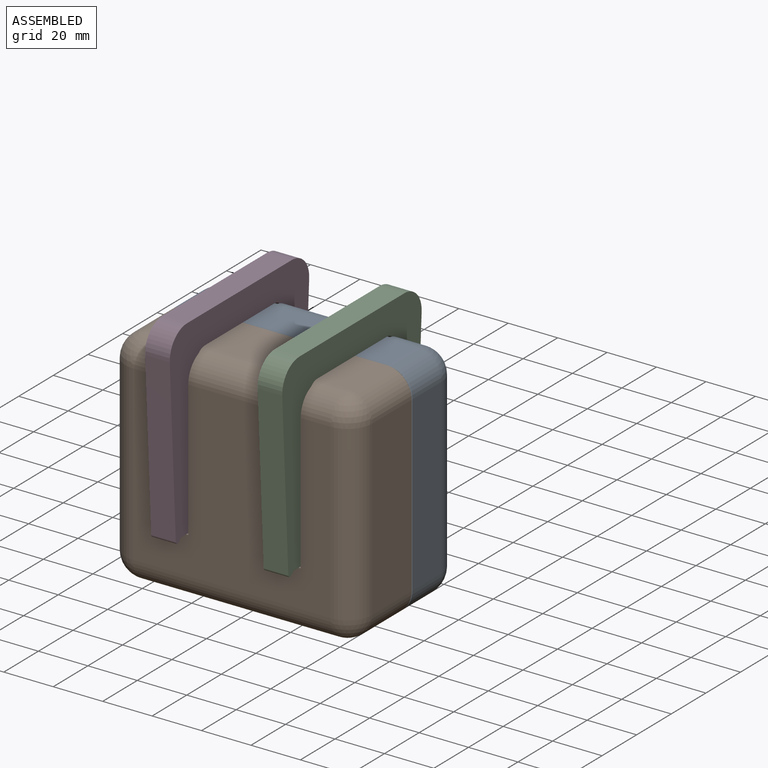
[diagram: assembled view]
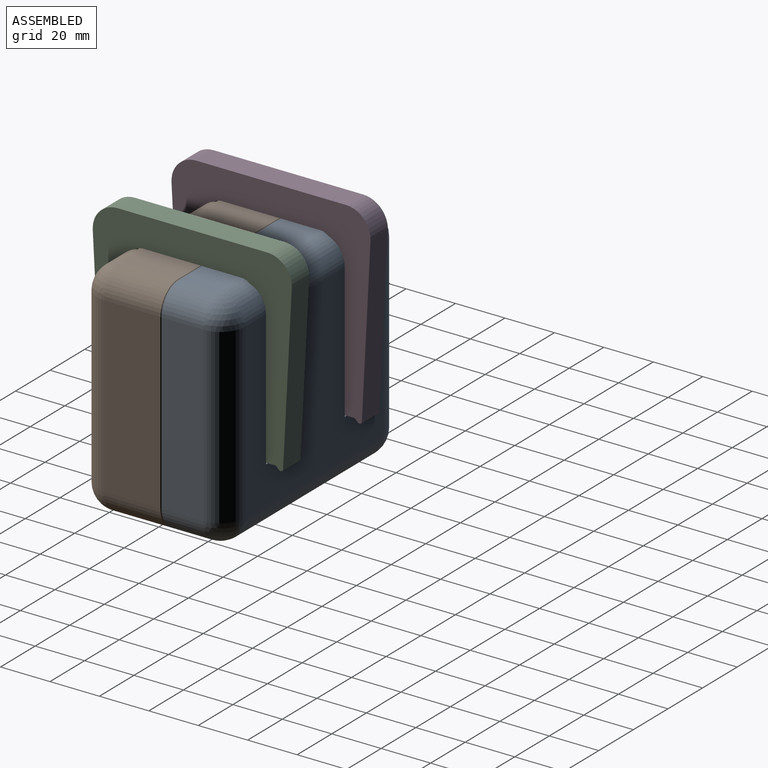
[diagram: assembled view, second angle]
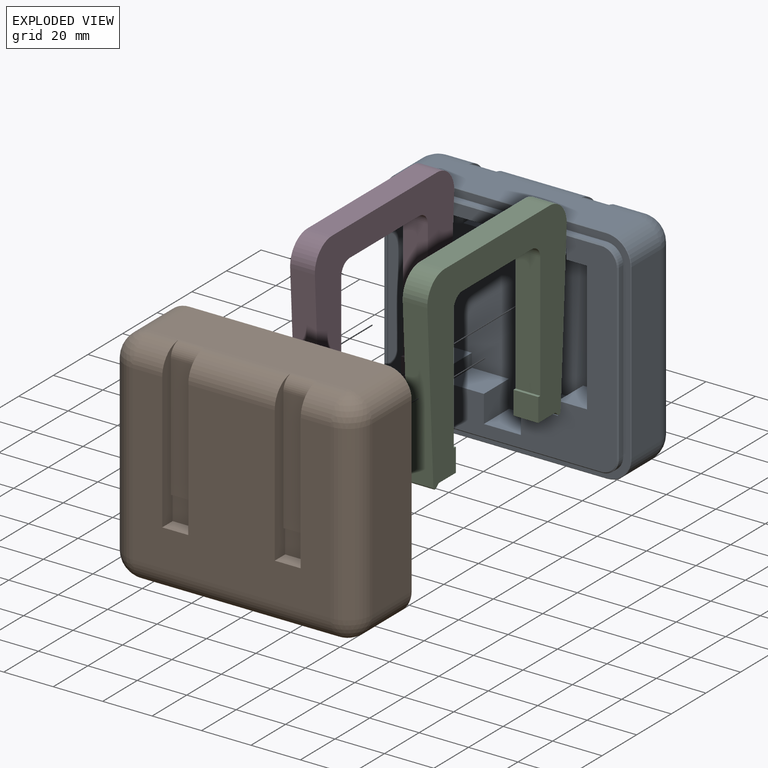
[diagram: exploded view]
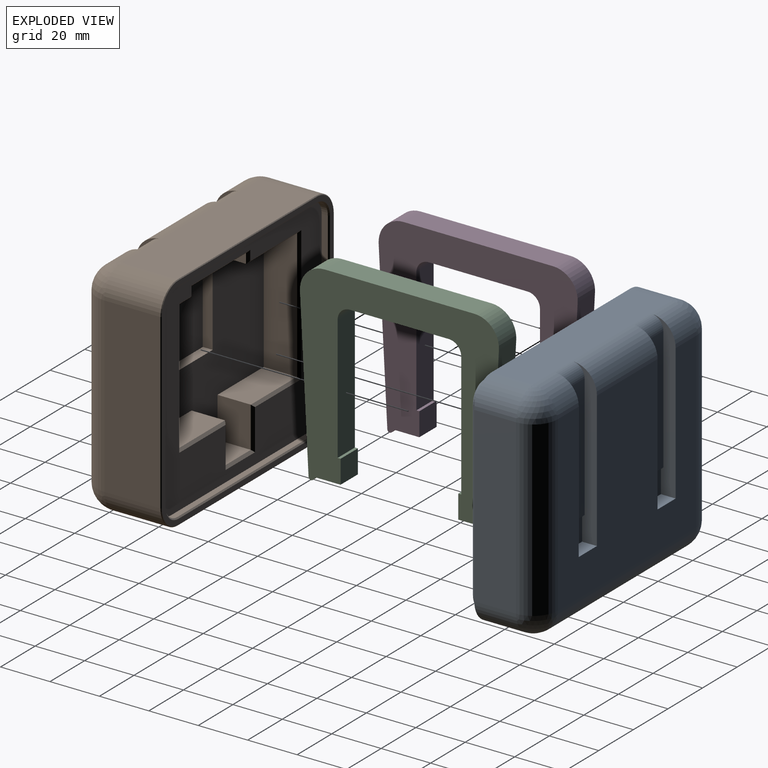
[diagram: exploded view, second angle]
ASSEMBLY  parts=4 mates=4
PART A: 78 faces, bbox 100x30x90 mm
  f0: plane 69x68.5mm, normal (0,-1,0), area 3696.8mm2, adj f37,f38,f39,f40,f41,f42,f43,f44
  f1: cylinder r=10mm len=12mm, axis (-1,0,0), area 188.5mm2, adj f6,f7,f9,f26
  f2: cylinder r=10mm len=35mm, axis (-1,0,0), area 549.8mm2, adj f6,f7,f22,f24
  f3: plane 70x16.8mm, normal (-1,0,0), area 1176mm2, adj f13,f17,f19,f73
  f4: plane 80x16.8mm, normal (0,0,-1), area 1344mm2, adj f10,f16,f19,f77
  f5: plane 70x16.8mm, normal (1,0,0), area 1176mm2, adj f8,f10,f11,f74
  f6: plane 80x16.8mm, normal (0,0,1), area 1344mm2, adj f1,f2,f8,f12,f13,f66,f67,f70
  f7: plane 80x70mm, normal (0,1,0), area 4445mm2, adj f1,f2,f11,f12,f16,f17,f20,f22
  f8: cylinder r=10mm len=16.8mm, axis (0,-1,0), area 263.9mm2, adj f5,f6,f9,f72
  f9: sphere r=10mm, area 157.1mm2, adj f1,f8,f11
  f10: cylinder r=10mm len=16.8mm, axis (0,1,0), area 263.9mm2, adj f4,f5,f14,f76
  f11: cylinder r=10mm len=70mm, axis (0,0,1), area 1099.6mm2, adj f5,f7,f9,f14
  f12: cylinder r=10mm len=12mm, axis (-1,0,0), area 188.5mm2, adj f6,f7,f15,f20
  f13: cylinder r=10mm len=16.8mm, axis (0,1,0), area 263.9mm2, adj f3,f6,f15,f71
  f14: sphere r=10mm, area 157.1mm2, adj f10,f11,f16
  f15: sphere r=10mm, area 157.1mm2, adj f12,f13,f17
  f16: cylinder r=10mm len=80mm, axis (1,0,0), area 1256.6mm2, adj f4,f7,f14,f18
  f17: cylinder r=10mm len=70mm, axis (0,0,-1), area 1099.6mm2, adj f3,f7,f15,f18
  f18: sphere r=10mm, area 157.1mm2, adj f16,f17,f19
  f19: cylinder r=10mm len=16.8mm, axis (0,-1,0), area 263.9mm2, adj f3,f4,f18,f75
  f20: plane 65x10mm, normal (1,0,0), area 318.9mm2, adj f7,f12,f21,f23,f56,f57,f67
  f21: plane 50x10.5mm, normal (0,1,0), area 525mm2, adj f20,f22,f56,f67
  f22: plane 65x10mm, normal (-1,0,0), area 318.9mm2, adj f2,f7,f21,f23,f56,f57,f67
  f23: plane 10.5x6mm, normal (0,0,1), area 63mm2, adj f7,f20,f22,f57
  f24: plane 65x10mm, normal (1,0,0), area 318.9mm2, adj f2,f7,f25,f27,f54,f55,f66
  f25: plane 50x10.5mm, normal (0,1,0), area 525mm2, adj f24,f26,f54,f66
  f26: plane 65x10mm, normal (-1,0,0), area 318.9mm2, adj f1,f7,f25,f27,f54,f55,f66
  f27: plane 10.5x6mm, normal (0,0,1), area 63mm2, adj f7,f24,f26,f55
  f28: cylinder r=6.8mm len=6.8mm, axis (0,-1,0), area 26.7mm2, adj f29,f35,f36,f64
  f29: plane 70x2.5mm, normal (1,0,0), area 175mm2, adj f28,f30,f36,f65
  f30: cylinder r=6.8mm len=6.8mm, axis (0,-1,0), area 26.7mm2, adj f29,f31,f36,f63
  f31: plane 80x2.5mm, normal (0,0,-1), area 200mm2, adj f30,f32,f36,f61
  f32: cylinder r=6.8mm len=6.8mm, axis (0,-1,0), area 26.7mm2, adj f31,f33,f36,f59
  f33: plane 70x2.5mm, normal (-1,0,0), area 175mm2, adj f32,f34,f36,f58
  f34: cylinder r=6.8mm len=6.8mm, axis (0,-1,0), area 26.7mm2, adj f33,f35,f36,f60
  f35: plane 80x2.5mm, normal (0,0,1), area 200mm2, adj f28,f34,f36,f62
  f36: plane 99.6x89.6mm, normal (0,-1,0), area 1056.5mm2, adj f28,f29,f30,f31,f32,f33,f34,f35
  f37: plane 19.5x10mm, normal (1,0,0), area 108mm2, adj f0,f38,f52,f53,f68,f69
  f38: plane 14.5x8.25mm, normal (0,0,-1), area 119.6mm2, adj f0,f37,f39,f53
  f39: plane 52.5x14.5mm, normal (1,0,0), area 761.2mm2, adj f0,f38,f40,f53
  f40: plane 14.5x11.75mm, normal (0,0,1), area 170.4mm2, adj f0,f39,f41,f53
  f41: plane 14.5x5.5mm, normal (1,0,0), area 79.7mm2, adj f0,f40,f42,f53
  f42: plane 15x14.5mm, normal (0,0,1), area 217.5mm2, adj f0,f41,f43,f53
  f43: plane 14.5x11mm, normal (1,0,0), area 159.5mm2, adj f0,f42,f44,f53
  f44: plane 15x14.5mm, normal (0,0,1), area 217.5mm2, adj f0,f43,f45,f53
  f45: plane 14.5x11mm, normal (-1,0,0), area 159.5mm2, adj f0,f44,f46,f53
  f46: plane 15x14.5mm, normal (0,0,1), area 217.5mm2, adj f0,f45,f47,f53
  f47: plane 14.5x5.5mm, normal (-1,0,0), area 79.7mm2, adj f0,f46,f48,f53
  f48: plane 14.5x11.75mm, normal (0,0,1), area 170.4mm2, adj f0,f47,f49,f53
  f49: plane 52.5x14.5mm, normal (-1,0,0), area 761.2mm2, adj f0,f48,f50,f53
  f50: plane 14.5x8.25mm, normal (0,0,-1), area 119.6mm2, adj f0,f49,f51,f53
  f51: plane 19.5x10mm, normal (-1,0,0), area 108mm2, adj f0,f50,f52,f53,f68,f69
  f52: plane 52x19.5mm, normal (0,0,-1), area 1014mm2, adj f37,f51,f53,f69
  f53: plane 92.6x82.6mm, normal (0,-1,0), area 3397.9mm2, adj f37,f38,f39,f40,f41,f42,f43,f44
  f54: plane 10.5x1mm, normal (0,0,-1), area 10.5mm2, adj f24,f25,f26,f55
  f55: plane 10.5x10mm, normal (0,1,0), area 105mm2, adj f24,f26,f27,f54
  f56: plane 10.5x1mm, normal (0,0,-1), area 10.5mm2, adj f20,f21,f22,f57
  f57: plane 10.5x10mm, normal (0,1,0), area 105mm2, adj f20,f22,f23,f56
  f58: plane 70x0.5mm, normal (-0.71,-0.71,0), area 49.5mm2, adj f33,f53,f59,f60
  f59: cone r=6.3mm half-angle=45deg, axis (0,1,0), area 7.3mm2, adj f32,f53,f58,f61
  f60: cone r=6.3mm half-angle=45deg, axis (0,1,0), area 7.3mm2, adj f34,f53,f58,f62
  f61: plane 80x0.5mm, normal (0,-0.71,-0.71), area 56.6mm2, adj f31,f53,f59,f63
  f62: plane 80x0.5mm, normal (0,-0.71,0.71), area 56.6mm2, adj f35,f53,f60,f64
  f63: cone r=6.3mm half-angle=45deg, axis (0,1,0), area 7.3mm2, adj f30,f53,f61,f65
  f64: cone r=6.3mm half-angle=45deg, axis (0,1,0), area 7.3mm2, adj f28,f53,f62,f65
  f65: plane 70x0.5mm, normal (0.71,-0.71,0), area 49.5mm2, adj f29,f53,f63,f64
  f66: cylinder r=5mm len=10.5mm, axis (-1,0,0), area 82.5mm2, adj f6,f24,f25,f26
  f67: cylinder r=5mm len=10.5mm, axis (-1,0,0), area 82.5mm2, adj f6,f20,f21,f22
  f68: plane 52x5mm, normal (0,0,1), area 260mm2, adj f0,f37,f51,f69
  f69: plane 52x10mm, normal (0,-1,0), area 520mm2, adj f37,f51,f52,f68
  f70: plane 80x0.2mm, normal (0,-0.71,0.71), area 22.6mm2, adj f6,f36,f71,f72
  f71: cone r=9.8mm half-angle=45deg, axis (0,1,0), area 4.4mm2, adj f13,f36,f70,f73
  f72: cone r=9.8mm half-angle=45deg, axis (0,1,0), area 4.4mm2, adj f8,f36,f70,f74
  f73: plane 70x0.2mm, normal (-0.71,-0.71,0), area 19.8mm2, adj f3,f36,f71,f75
  f74: plane 70x0.2mm, normal (0.71,-0.71,0), area 19.8mm2, adj f5,f36,f72,f76
  f75: cone r=9.8mm half-angle=45deg, axis (0,1,0), area 4.4mm2, adj f19,f36,f73,f77
  f76: cone r=9.8mm half-angle=45deg, axis (0,1,0), area 4.4mm2, adj f10,f36,f74,f77
  f77: plane 80x0.2mm, normal (0,-0.71,-0.71), area 22.6mm2, adj f4,f36,f75,f76
PART B: 88 faces, bbox 100x33x90 mm
  f0: plane 32x4mm, normal (0,-1,0), area 128mm2, adj f38,f39,f40,f49
  f1: cylinder r=10mm len=12mm, axis (-1,0,0), area 188.5mm2, adj f6,f7,f9,f26
  f2: cylinder r=10mm len=35mm, axis (-1,0,0), area 549.8mm2, adj f6,f7,f22,f24
  f3: plane 70x22.7mm, normal (-1,0,0), area 1589mm2, adj f13,f17,f19,f71
  f4: plane 80x22.7mm, normal (0,0,-1), area 1816mm2, adj f10,f16,f19,f75
  f5: plane 70x22.7mm, normal (1,0,0), area 1589mm2, adj f8,f10,f11,f72
  f6: plane 80x22.7mm, normal (0,0,1), area 1816mm2, adj f1,f2,f8,f12,f13,f63,f64,f68
  f7: plane 80x70mm, normal (0,1,0), area 4445mm2, adj f1,f2,f11,f12,f16,f17,f20,f22
  f8: cylinder r=10mm len=22.7mm, axis (0,-1,0), area 356.6mm2, adj f5,f6,f9,f70
  f9: sphere r=10mm, area 157.1mm2, adj f1,f8,f11
  f10: cylinder r=10mm len=22.7mm, axis (0,1,0), area 356.6mm2, adj f4,f5,f14,f74
  f11: cylinder r=10mm len=70mm, axis (0,0,1), area 1099.6mm2, adj f5,f7,f9,f14
  f12: cylinder r=10mm len=12mm, axis (-1,0,0), area 188.5mm2, adj f6,f7,f15,f20
  f13: cylinder r=10mm len=22.7mm, axis (0,1,0), area 356.6mm2, adj f3,f6,f15,f69
  f14: sphere r=10mm, area 157.1mm2, adj f10,f11,f16
  f15: sphere r=10mm, area 157.1mm2, adj f12,f13,f17
  f16: cylinder r=10mm len=80mm, axis (1,0,0), area 1256.6mm2, adj f4,f7,f14,f18
  f17: cylinder r=10mm len=70mm, axis (0,0,-1), area 1099.6mm2, adj f3,f7,f15,f18
  f18: sphere r=10mm, area 157.1mm2, adj f16,f17,f19
  f19: cylinder r=10mm len=22.7mm, axis (0,-1,0), area 356.6mm2, adj f3,f4,f18,f73
  f20: plane 65x10mm, normal (1,0,0), area 318.9mm2, adj f7,f12,f21,f23,f53,f54,f64
  f21: plane 50x10.5mm, normal (0,1,0), area 525mm2, adj f20,f22,f53,f64
  f22: plane 65x10mm, normal (-1,0,0), area 318.9mm2, adj f2,f7,f21,f23,f53,f54,f64
  f23: plane 10.5x6mm, normal (0,0,1), area 63mm2, adj f7,f20,f22,f54
  f24: plane 65x10mm, normal (1,0,0), area 318.9mm2, adj f2,f7,f25,f27,f51,f52,f63
  f25: plane 50x10.5mm, normal (0,1,0), area 525mm2, adj f24,f26,f51,f63
  f26: plane 65x10mm, normal (-1,0,0), area 318.9mm2, adj f1,f7,f25,f27,f51,f52,f63
  f27: plane 10.5x6mm, normal (0,0,1), area 63mm2, adj f7,f24,f26,f52
  f28: cylinder r=7mm len=7mm, axis (0,1,0), area 27.5mm2, adj f29,f35,f50,f58
  f29: plane 70x2.5mm, normal (-1,0,0), area 175mm2, adj f28,f30,f50,f56
  f30: cylinder r=7mm len=7mm, axis (0,1,0), area 27.5mm2, adj f29,f31,f50,f55
  f31: plane 80x2.5mm, normal (0,0,1), area 200mm2, adj f30,f32,f50,f57
  f32: cylinder r=7mm len=7mm, axis (0,1,0), area 27.5mm2, adj f31,f33,f50,f59
  f33: plane 70x2.5mm, normal (1,0,0), area 175mm2, adj f32,f34,f50,f61
  f34: cylinder r=7mm len=7mm, axis (0,1,0), area 27.5mm2, adj f33,f35,f50,f62
  f35: plane 80x2.5mm, normal (0,0,-1), area 200mm2, adj f28,f34,f50,f60
  f36: plane 99.4x89.4mm, normal (0,-1,0), area 778.9mm2, adj f55,f56,f57,f58,f59,f60,f61,f62
  f37: plane 69x68.5mm, normal (0,-1,0), area 2478.7mm2, adj f41,f42,f43,f44,f45,f46,f47,f48
  f38: plane 32x13.5mm, normal (0,0,-1), area 432mm2, adj f0,f39,f49,f86
  f39: plane 13.5x4mm, normal (1,0,0), area 54mm2, adj f0,f38,f40,f84
  f40: plane 39x17.5mm, normal (0,0,-1), area 250.5mm2, adj f0,f39,f41,f66,f67,f82
  f41: plane 52.5x17.5mm, normal (1,0,0), area 848.8mm2, adj f37,f40,f42,f65,f67,f80
  f42: plane 26.75x13.5mm, normal (0,0,1), area 361.1mm2, adj f37,f41,f43,f78
  f43: plane 16.5x13.5mm, normal (1,0,0), area 222.7mm2, adj f37,f42,f44,f76
  f44: plane 15x13.5mm, normal (0,0,1), area 202.5mm2, adj f37,f43,f45,f77
  f45: plane 16.5x13.5mm, normal (-1,0,0), area 222.7mm2, adj f37,f44,f46,f79
  f46: plane 26.75x13.5mm, normal (0,0,1), area 361.1mm2, adj f37,f45,f47,f81
  f47: plane 52.5x13.5mm, normal (-1,0,0), area 708.8mm2, adj f37,f46,f48,f83
  f48: plane 29.5x13.5mm, normal (0,0,-1), area 398.2mm2, adj f37,f47,f49,f85
  f49: plane 13.5x4mm, normal (-1,0,0), area 54mm2, adj f0,f38,f48,f87
  f50: plane 94x84mm, normal (0,-1,0), area 3595.2mm2, adj f28,f29,f30,f31,f32,f33,f34,f35
  f51: plane 10.5x1mm, normal (0,0,-1), area 10.5mm2, adj f24,f25,f26,f52
  f52: plane 10.5x10mm, normal (0,1,0), area 105mm2, adj f24,f26,f27,f51
  f53: plane 10.5x1mm, normal (0,0,-1), area 10.5mm2, adj f20,f21,f22,f54
  f54: plane 10.5x10mm, normal (0,1,0), area 105mm2, adj f20,f22,f23,f53
  f55: cone r=7mm half-angle=45deg, axis (0,-1,0), area 8.1mm2, adj f30,f36,f56,f57
  f56: plane 70x0.5mm, normal (-0.71,-0.71,0), area 49.5mm2, adj f29,f36,f55,f58
  f57: plane 80x0.5mm, normal (0,-0.71,0.71), area 56.6mm2, adj f31,f36,f55,f59
  f58: cone r=7mm half-angle=45deg, axis (0,-1,0), area 8.1mm2, adj f28,f36,f56,f60
  f59: cone r=7mm half-angle=45deg, axis (0,-1,0), area 8.1mm2, adj f32,f36,f57,f61
  f60: plane 80x0.5mm, normal (0,-0.71,-0.71), area 56.6mm2, adj f35,f36,f58,f62
  f61: plane 70x0.5mm, normal (0.71,-0.71,0), area 49.5mm2, adj f33,f36,f59,f62
  f62: cone r=7mm half-angle=45deg, axis (0,-1,0), area 8.1mm2, adj f34,f36,f60,f61
  f63: cylinder r=5mm len=10.5mm, axis (-1,0,0), area 82.5mm2, adj f6,f24,f25,f26
  f64: cylinder r=5mm len=10.5mm, axis (-1,0,0), area 82.5mm2, adj f6,f20,f21,f22
  f65: plane 39x4mm, normal (0,0,1), area 156mm2, adj f37,f41,f66,f67
  f66: plane 35x4mm, normal (-1,0,0), area 140mm2, adj f37,f40,f65,f67
  f67: plane 39x35mm, normal (0,-1,0), area 1365mm2, adj f40,f41,f65,f66
  f68: plane 80x0.3mm, normal (0,-0.71,0.71), area 33.9mm2, adj f6,f36,f69,f70
  f69: cone r=9.7mm half-angle=45deg, axis (0,1,0), area 6.6mm2, adj f13,f36,f68,f71
  f70: cone r=9.7mm half-angle=45deg, axis (0,1,0), area 6.6mm2, adj f8,f36,f68,f72
  f71: plane 70x0.3mm, normal (-0.71,-0.71,0), area 29.7mm2, adj f3,f36,f69,f73
  f72: plane 70x0.3mm, normal (0.71,-0.71,0), area 29.7mm2, adj f5,f36,f70,f74
  f73: cone r=9.7mm half-angle=45deg, axis (0,1,0), area 6.6mm2, adj f19,f36,f71,f75
  f74: cone r=9.7mm half-angle=45deg, axis (0,1,0), area 6.6mm2, adj f10,f36,f72,f75
  f75: plane 80x0.3mm, normal (0,-0.71,-0.71), area 33.9mm2, adj f4,f36,f73,f74
  f76: plane 17.5x1mm, normal (0.71,-0.71,0), area 23.3mm2, adj f43,f50,f77,f78
  f77: plane 17x1mm, normal (0,-0.71,0.71), area 22.6mm2, adj f44,f50,f76,f79
  f78: plane 27.75x1mm, normal (0,-0.71,0.71), area 37.8mm2, adj f42,f50,f76,f80
  f79: plane 17.5x1mm, normal (-0.71,-0.71,0), area 23.3mm2, adj f45,f50,f77,f81
  f80: plane 54.5x1mm, normal (0.71,-0.71,0), area 75.7mm2, adj f41,f50,f78,f82
  f81: plane 27.75x1mm, normal (0,-0.71,0.71), area 37.8mm2, adj f46,f50,f79,f83
  f82: plane 8x1mm, normal (0,-0.71,-0.71), area 9.9mm2, adj f40,f50,f80,f84
  f83: plane 54.5x1mm, normal (-0.71,-0.71,0), area 75.7mm2, adj f47,f50,f81,f85
  f84: plane 5x1mm, normal (0.71,-0.71,0), area 5.7mm2, adj f39,f50,f82,f86
  f85: plane 30.5x1mm, normal (0,-0.71,-0.71), area 41.7mm2, adj f48,f50,f83,f87
  f86: plane 34x1mm, normal (0,-0.71,-0.71), area 46.7mm2, adj f38,f50,f84,f87
  f87: plane 5x1mm, normal (-0.71,-0.71,0), area 5.7mm2, adj f49,f50,f85,f86
PART C: 24 faces, bbox 78.5x10x80.5 mm
  f0: plane 50.5x10mm, normal (0,0,-1), area 505mm2, adj f13,f14,f15,f16
  f1: plane 40x10mm, normal (-1,0,0), area 400mm2, adj f14,f15,f16,f17
  f2: plane 50.5x10mm, normal (0,0,1), area 505mm2, adj f3,f14,f15,f17
  f3: plane 10x1.2mm, normal (1,0,0), area 12mm2, adj f2,f4,f14,f15
  f4: plane 10x9.5mm, normal (0,0,1), area 95mm2, adj f3,f5,f14,f15
  f5: plane 10x9.59mm, normal (-1,0,0), area 95.9mm2, adj f4,f14,f15,f20
  f6: plane 10x0.95mm, normal (-0.71,0,0.71), area 13.4mm2, adj f14,f15,f20,f21
  f7: plane 67.06x10mm, normal (-0.05,0,-1), area 671.5mm2, adj f14,f15,f18,f21
  f8: plane 60.55x10mm, normal (1,0,0), area 605.5mm2, adj f14,f15,f18,f19
  f9: plane 67.06x10mm, normal (-0.05,0,1), area 671.5mm2, adj f14,f15,f19,f22
  f10: plane 10x0.95mm, normal (-0.71,0,-0.71), area 13.4mm2, adj f14,f15,f22,f23
  f11: plane 10x9.59mm, normal (-1,0,0), area 95.9mm2, adj f12,f14,f15,f23
  f12: plane 10x9.5mm, normal (0,0,-1), area 95mm2, adj f11,f13,f14,f15
  f13: plane 10x1.2mm, normal (1,0,0), area 12mm2, adj f0,f12,f14,f15
  f14: plane 80.55x78.53mm, normal (0,-1,0), area 2715.7mm2, adj f0,f1,f2,f3,f4,f5,f6,f7
  f15: plane 80.55x78.53mm, normal (0,1,0), area 2715.7mm2, adj f0,f1,f2,f3,f4,f5,f6,f7
  f16: cylinder r=5mm len=10mm, axis (0,-1,0), area 78.5mm2, adj f0,f1,f14,f15
  f17: cylinder r=5mm len=10mm, axis (0,-1,0), area 78.5mm2, adj f1,f2,f14,f15
  f18: cylinder r=10mm len=10.52mm, axis (0,1,0), area 162.3mm2, adj f7,f8,f14,f15
  f19: cylinder r=10mm len=10.52mm, axis (0,1,0), area 162.3mm2, adj f8,f9,f14,f15
  f20: cylinder r=1mm len=10mm, axis (0,-1,0), area 7.9mm2, adj f5,f6,f14,f15
  f21: cylinder r=1mm len=10mm, axis (0,1,0), area 23mm2, adj f6,f7,f14,f15
  f22: cylinder r=1mm len=10mm, axis (0,1,0), area 23mm2, adj f9,f10,f14,f15
  f23: cylinder r=1mm len=10mm, axis (0,-1,0), area 7.9mm2, adj f10,f11,f14,f15
PART D: same geometry as C
PLACE A t=(-0.27,-0.2,-0.06)mm fixed
PLACE B rot(axis=(0,0,1),180deg) t=(-0.27,-30.2,-0.06)mm
PLACE C rot(axis=(0.58,-0.58,0.58),120deg) t=(17.48,-40.2,45.44)mm
PLACE D rot(axis=(-0.58,-0.58,-0.58),120deg) t=(-18.02,9.8,45.44)mm
MATE planar A.f36 <-> B.f36  axis (0,-1,0) through (-0.27,-12.2,-0.06)mm
MATE planar B.f3 <-> A.f5  axis (1,0,0) through (49.73,-23.85,-0.06)mm
MATE fastened D.f2 <-> B.f25  axis (0,1,0) through (-23.02,-40.2,-10.06)mm
MATE fastened C.f0 <-> B.f21  axis (0,1,0) through (22.48,-40.2,-10.06)mm
